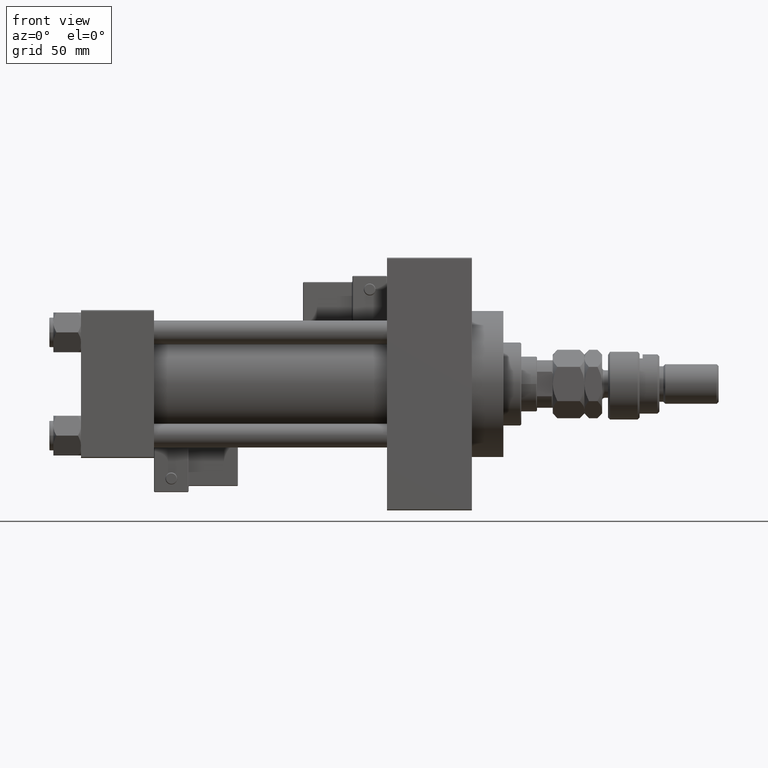
[diagram: clean part render]
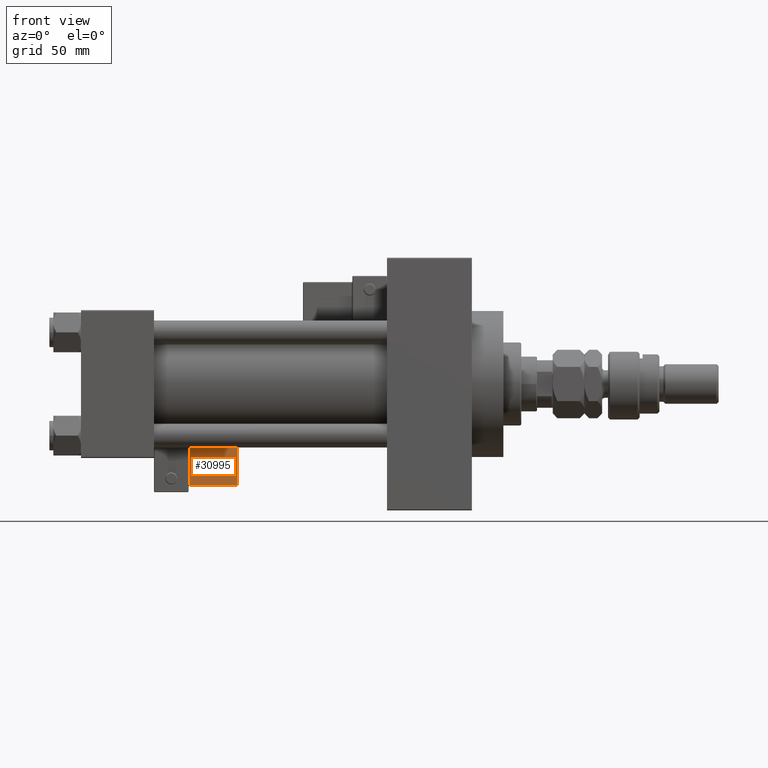
[diagram: same view with one face highlighted and labeled with its STEP entity id]
A machine part, front view. The second image highlights one B-rep face of the part: STEP entity #30995.
In plain terms, the highlighted planar face has unit normal (0, 0.9994, 0.0353).
Its self-contained STEP definition (entity closure, byte-faithful):
#122 = EDGE_LOOP ( 'NONE', ( #33503, #26111, #16935, #3175 ) ) ;
#3175 = ORIENTED_EDGE ( 'NONE', *, *, #49524, .T. ) ;
#7340 = AXIS2_PLACEMENT_3D ( 'NONE', #45924, #9622, #25785 ) ;
#7903 = CARTESIAN_POINT ( 'NONE',  ( 33.24999999999999289, -36.25000000000000000, 22.00000000000000355 ) ) ;
#9622 = DIRECTION ( 'NONE',  ( -0.000000000000000000, 1.000000000000000000, 0.000000000000000000 ) ) ;
#10368 = CARTESIAN_POINT ( 'NONE',  ( 9.250000000000005329, -36.25000000000000000, 2.000000000000005329 ) ) ;
#11725 = EDGE_CURVE ( 'NONE', #46916, #45614, #28149, .T. ) ;
#12232 = DIRECTION ( 'NONE',  ( 1.000000000000000000, -0.000000000000000000, 1.334402673828313339E-16 ) ) ;
#16935 = ORIENTED_EDGE ( 'NONE', *, *, #51344, .T. ) ;
#17434 = EDGE_CURVE ( 'NONE', #33797, #46916, #30503, .T. ) ;
#18044 = DIRECTION ( 'NONE',  ( 1.334402673828313339E-16, 0.000000000000000000, -1.000000000000000000 ) ) ;
#19610 = CARTESIAN_POINT ( 'NONE',  ( 9.250000000000005329, -36.25000000000000000, 2.500000000000004885 ) ) ;
#19618 = VECTOR ( 'NONE', #12232, 1000.000000000000000 ) ;
#20449 = CARTESIAN_POINT ( 'NONE',  ( 33.75000000000000000, -36.25000000000000000, 2.500000000000009326 ) ) ;
#22658 = VECTOR ( 'NONE', #28809, 1000.000000000000000 ) ;
#25785 = DIRECTION ( 'NONE',  ( 0.000000000000000000, -0.000000000000000000, 1.000000000000000000 ) ) ;
#26111 = ORIENTED_EDGE ( 'NONE', *, *, #11725, .T. ) ;
#27238 = LINE ( 'NONE', #43394, #51420 ) ;
#28149 = LINE ( 'NONE', #20449, #19618 ) ;
#28809 = DIRECTION ( 'NONE',  ( -1.734723475976807587E-16, -0.000000000000000000, 1.000000000000000000 ) ) ;
#29759 = PLANE ( 'NONE',  #7340 ) ;
#30503 = LINE ( 'NONE', #10368, #45958 ) ;
#30995 = ADVANCED_FACE ( 'NONE', ( #33728 ), #29759, .F. ) ;
#31464 = CARTESIAN_POINT ( 'NONE',  ( 33.24999999999999289, -36.25000000000000000, 2.500000000000008438 ) ) ;
#31618 = VERTEX_POINT ( 'NONE', #42554 ) ;
#32238 = DIRECTION ( 'NONE',  ( -1.000000000000000000, 0.000000000000000000, -1.334402673828313339E-16 ) ) ;
#33503 = ORIENTED_EDGE ( 'NONE', *, *, #17434, .T. ) ;
#33728 = FACE_OUTER_BOUND ( 'NONE', #122, .T. ) ;
#33797 = VERTEX_POINT ( 'NONE', #46941 ) ;
#42554 = CARTESIAN_POINT ( 'NONE',  ( 33.24999999999999289, -36.25000000000000000, 21.50000000000000000 ) ) ;
#43394 = CARTESIAN_POINT ( 'NONE',  ( 33.75000000000000000, -36.25000000000000000, 21.50000000000000000 ) ) ;
#45614 = VERTEX_POINT ( 'NONE', #31464 ) ;
#45924 = CARTESIAN_POINT ( 'NONE',  ( 33.75000000000000000, -36.25000000000000000, 22.00000000000000355 ) ) ;
#45958 = VECTOR ( 'NONE', #18044, 1000.000000000000000 ) ;
#46916 = VERTEX_POINT ( 'NONE', #19610 ) ;
#46941 = CARTESIAN_POINT ( 'NONE',  ( 9.250000000000003553, -36.25000000000000000, 21.50000000000000000 ) ) ;
#49524 = EDGE_CURVE ( 'NONE', #31618, #33797, #27238, .T. ) ;
#51344 = EDGE_CURVE ( 'NONE', #45614, #31618, #52429, .T. ) ;
#51420 = VECTOR ( 'NONE', #32238, 1000.000000000000000 ) ;
#52429 = LINE ( 'NONE', #7903, #22658 ) ;